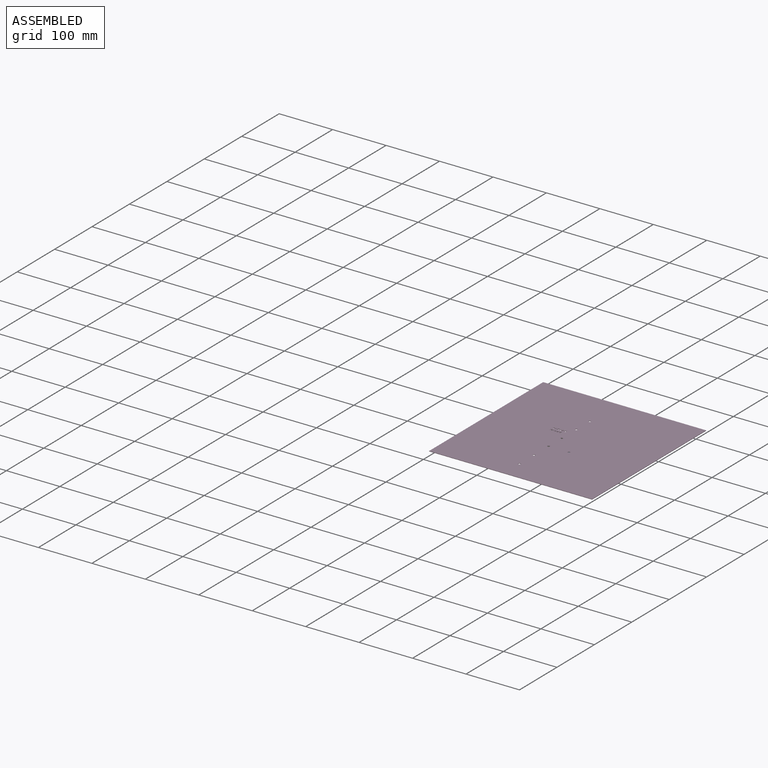
[diagram: assembled view]
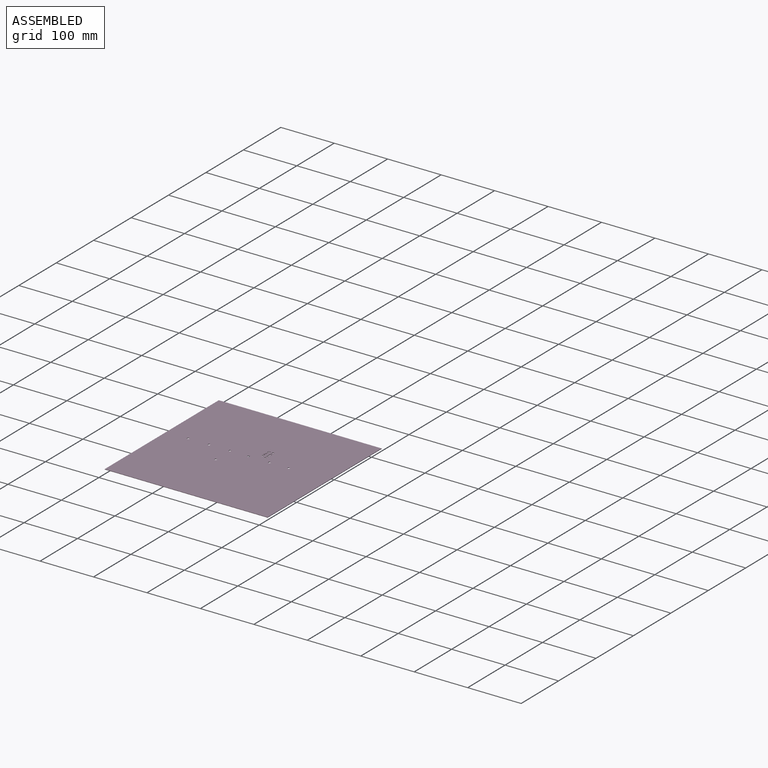
[diagram: assembled view, second angle]
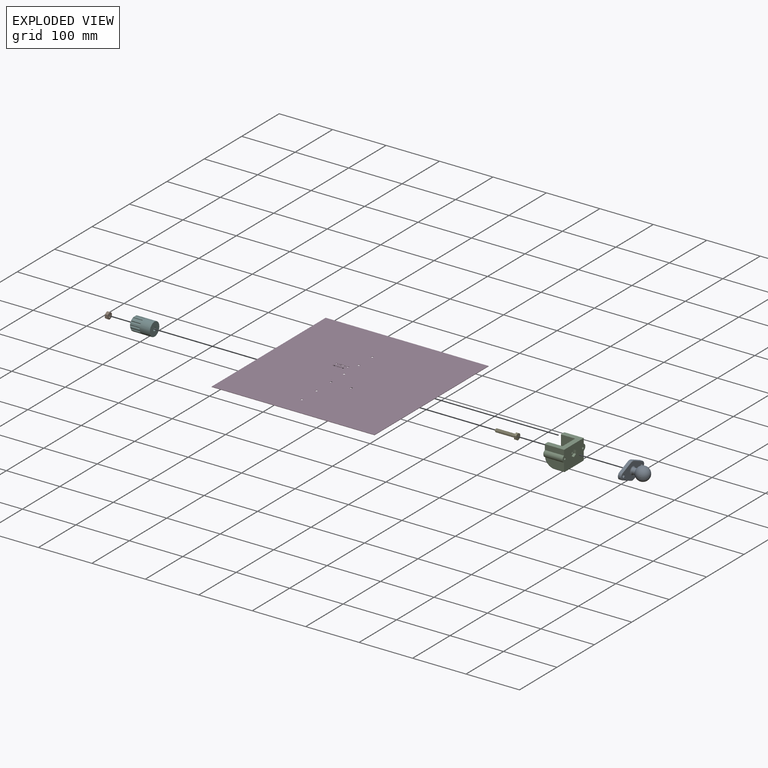
[diagram: exploded view]
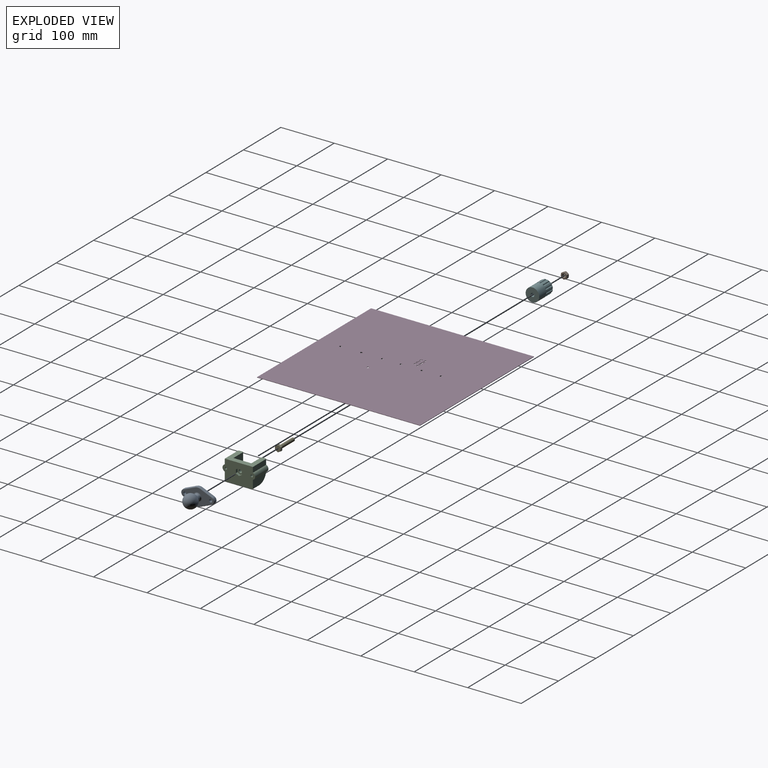
[diagram: exploded view, second angle]
ASSEMBLY  parts=6 mates=14
PART A: 23 faces, bbox 63.1x35.1x37.9 mm
  f0: cylinder r=6.86mm len=12.64mm, axis (0,0,1), area 85.7mm2, adj f1,f4,f6,f9
  f1: plane 21.87x9.2mm, normal (-0.39,-0.92,0), area 126.4mm2, adj f0,f2,f4,f7
  f2: cylinder r=12.7mm len=9.85mm, axis (0,0,1), area 53.9mm2, adj f1,f4,f8,f14
  f3: cylinder r=2.73mm len=6.12mm, axis (0,0,1), area 105mm2, adj f4,f5
  f4: plane 61.98x33.02mm, normal (0,0,-1), area 1303.6mm2, adj f0,f1,f2,f3,f9,f10,f13,f14
  f5: plane 60.39x31.43mm, normal (0,0,1), area 995.5mm2, adj f3,f6,f7,f8,f11,f12,f15,f16
  f6: torus R=6.06mm, axis (0,0,1), area 19.2mm2, adj f0,f5,f7,f11
  f7: cylinder r=0.79mm len=22.17mm, axis (0.92,-0.39,0), area 29.6mm2, adj f1,f5,f6,f8
  f8: torus R=11.91mm, axis (0,0,1), area 12.3mm2, adj f2,f5,f7,f17
  f9: plane 21.87x9.2mm, normal (-0.39,0.92,0), area 126.4mm2, adj f0,f4,f10,f11
  f10: cylinder r=12.7mm len=9.85mm, axis (0,0,1), area 53.9mm2, adj f4,f9,f12,f18
  f11: cylinder r=0.79mm len=22.17mm, axis (0.92,0.39,0), area 29.6mm2, adj f5,f6,f9,f12
  f12: torus R=11.91mm, axis (0,0,1), area 12.3mm2, adj f5,f10,f11,f19
  f13: cylinder r=6.86mm len=12.64mm, axis (0,0,1), area 85.7mm2, adj f4,f14,f16,f18
  f14: plane 21.87x9.2mm, normal (0.39,-0.92,0), area 126.4mm2, adj f2,f4,f13,f17
  f15: cylinder r=2.73mm len=6.12mm, axis (0,0,1), area 105mm2, adj f4,f5
  f16: torus R=6.06mm, axis (0,0,1), area 19.2mm2, adj f5,f13,f17,f19
  f17: cylinder r=0.79mm len=22.17mm, axis (-0.92,-0.39,0), area 29.6mm2, adj f5,f8,f14,f16
  f18: plane 21.87x9.2mm, normal (0.39,0.92,0), area 126.4mm2, adj f4,f10,f13,f19
  f19: cylinder r=0.79mm len=22.17mm, axis (-0.92,0.39,0), area 29.6mm2, adj f5,f12,f16,f18
  f20: sphere r=12.7mm, area 1928.4mm2, adj f21
  f21: cylinder r=5.46mm len=10.92mm, axis (0,0,-1), area 178.5mm2, adj f20,f22
  f22: torus R=7.84mm, axis (0,0,-1), area 148.7mm2, adj f5,f21
PART B: 26 faces, bbox 13.4x13.4x7 mm
  f0: cone r=2.86mm half-angle=45deg, axis (0,0,-1), area 10.5mm2, adj f10,f11,f12,f13
  f1: cone r=2.86mm half-angle=45deg, axis (0,0,1), area 10.5mm2, adj f3,f11,f12,f13
  f2: cylinder r=3.17mm len=6.35mm, axis (0,0,-1), area 13.9mm2, adj f3,f10,f11,f13
  f3: plane 11.11x11.11mm, normal (0,0,1), area 65.3mm2, adj f1,f2,f14,f15,f16,f17,f18,f19
  f4: plane 6.08x6.08mm, normal (-0.5,0.87,0), area 33.5mm2, adj f5,f9,f14,f19,f21,f22
  f5: plane 6.95x6.09mm, normal (-1,0,0), area 33.5mm2, adj f4,f6,f18,f19,f22,f23
  f6: plane 6.08x6.08mm, normal (-0.5,-0.87,0), area 33.5mm2, adj f5,f7,f17,f18,f23,f24
  f7: plane 6.08x6.08mm, normal (0.5,-0.87,0), area 33.5mm2, adj f6,f8,f16,f17,f24,f25
  f8: plane 6.95x6.09mm, normal (1,0,0), area 33.5mm2, adj f7,f9,f15,f16,f20,f25
  f9: plane 6.08x6.08mm, normal (0.5,0.87,0), area 33.5mm2, adj f4,f8,f14,f15,f20,f21
  f10: plane 11.11x11.11mm, normal (0,0,-1), area 65.3mm2, adj f0,f2,f20,f21,f22,f23,f24,f25
  f11: bspline ~6.35x6.35mm, area 59.4mm2, adj f0,f1,f2,f12
  f12: cylinder r=2.35mm len=4.7mm, axis (0,0,1), area 7.2mm2, adj f0,f1,f11,f13
  f13: bspline ~6.35x6.35mm, area 62.2mm2, adj f0,f1,f2,f12
  f14: cone r=5.56mm half-angle=60deg, axis (0,0,-1), area 3mm2, adj f3,f4,f9
  f15: cone r=5.56mm half-angle=60deg, axis (0,0,-1), area 3mm2, adj f3,f8,f9
  f16: cone r=5.56mm half-angle=60deg, axis (0,0,-1), area 3mm2, adj f3,f7,f8
  f17: cone r=5.56mm half-angle=60deg, axis (0,0,-1), area 3mm2, adj f3,f6,f7
  f18: cone r=5.56mm half-angle=60deg, axis (0,0,-1), area 3mm2, adj f3,f5,f6
  f19: cone r=5.56mm half-angle=60deg, axis (0,0,-1), area 3mm2, adj f3,f4,f5
  f20: cone r=5.56mm half-angle=60deg, axis (0,0,1), area 3mm2, adj f8,f9,f10
  f21: cone r=5.56mm half-angle=60deg, axis (0,0,1), area 3mm2, adj f4,f9,f10
  f22: cone r=5.56mm half-angle=60deg, axis (0,0,1), area 3mm2, adj f4,f5,f10
  f23: cone r=5.56mm half-angle=60deg, axis (0,0,1), area 3mm2, adj f5,f6,f10
  f24: cone r=5.56mm half-angle=60deg, axis (0,0,1), area 3mm2, adj f6,f7,f10
  f25: cone r=5.56mm half-angle=60deg, axis (0,0,1), area 3mm2, adj f7,f8,f10
PART C: 46 faces, bbox 38.2x62x39.7 mm
  f0: plane 60.96x38.1mm, normal (1,0,0), area 1939.8mm2, adj f2,f6,f7,f8,f11,f12,f22,f24
  f1: cylinder r=3.24mm len=9.48mm, axis (1,0,0), area 192.8mm2, adj f10,f27
  f2: plane 35.01x9.85mm, normal (0,-1,0), area 344.7mm2, adj f0,f8,f12,f18
  f3: plane 36.51x33.56mm, normal (-1,0,0), area 936.5mm2, adj f4,f8,f9,f15,f29
  f4: plane 36.51x25.48mm, normal (0,1,0), area 864.9mm2, adj f3,f8,f14,f16,f17
  f5: plane 19.05x10.53mm, normal (-1,0,0), area 133.7mm2, adj f8,f11,f13,f14,f18,f19
  f6: plane 34.79x14.74mm, normal (0,-1,0), area 450.6mm2, adj f0,f12,f21,f22
  f7: plane 49.43x17.54mm, normal (0,0,-1), area 514.4mm2, adj f0,f13,f15,f17,f22,f34,f37,f42
  f8: plane 52.61x36.59mm, normal (0,0,1), area 1014.6mm2, adj f0,f2,f3,f4,f5,f14,f18,f28
  f9: cylinder r=9.59mm len=19.18mm, axis (1,0,0), area 212.3mm2, adj f3,f23
  f10: plane 17.59x17.59mm, normal (-1,0,0), area 210mm2, adj f1,f23
  f11: cylinder r=2.15mm len=36.59mm, axis (1,0,0), area 494.9mm2, adj f0,f5
  f12: cylinder r=6.35mm len=35.01mm, axis (1,0,0), area 542.9mm2, adj f0,f2,f6,f19,f20,f21
  f13: cylinder r=19.05mm len=19.05mm, axis (0,1,0), area 192.4mm2, adj f5,f7,f16,f20,f21
  f14: cylinder r=1.59mm len=19.05mm, axis (0,0,1), area 47.5mm2, adj f4,f5,f8,f16
  f15: cylinder r=1.59mm len=36.73mm, axis (0,1,0), area 87.6mm2, adj f3,f7,f17,f37
  f16: torus R=17.46mm, axis (0,1,0), area 72.4mm2, adj f4,f13,f14,f17
  f17: cylinder r=1.59mm len=9.61mm, axis (1,0,0), area 22mm2, adj f4,f7,f15,f16
  f18: cylinder r=1.59mm len=11.09mm, axis (0,0,1), area 26.1mm2, adj f2,f5,f8,f19
  f19: torus R=4.76mm, axis (-1,0,0), area 29.9mm2, adj f5,f12,f18,f20
  f20: bspline ~5.89x3.88mm, area 8.2mm2, adj f12,f13,f19,f21
  f21: torus R=17.46mm, axis (0,-1,0), area 66.4mm2, adj f6,f12,f13,f20,f22
  f22: cylinder r=1.59mm len=17.54mm, axis (-1,0,0), area 43.7mm2, adj f0,f6,f7,f21
  f23: cone r=8.79mm half-angle=45deg, axis (1,0,0), area 64.8mm2, adj f9,f10
  f24: plane 5.56x4.37mm, normal (0,0.5,0.87), area 28mm2, adj f0,f26,f27,f43
  f25: plane 5.56x4.37mm, normal (0,0.5,-0.87), area 28mm2, adj f0,f26,f27,f44
  f26: plane 6.42x4.37mm, normal (0,1,0), area 28mm2, adj f0,f24,f25,f27
  f27: plane 12.83x11.11mm, normal (1,0,0), area 74mm2, adj f1,f24,f25,f26,f43,f44,f45
  f28: plane 35.01x9.85mm, normal (0,1,0), area 344.7mm2, adj f0,f8,f33,f38
  f29: plane 36.51x25.48mm, normal (0,-1,0), area 864.9mm2, adj f3,f8,f35,f36,f37
  f30: plane 19.05x10.53mm, normal (-1,0,0), area 133.7mm2, adj f8,f32,f34,f35,f38,f39
  f31: plane 34.79x14.74mm, normal (0,1,0), area 450.6mm2, adj f0,f33,f41,f42
  f32: cylinder r=2.15mm len=36.59mm, axis (1,0,0), area 494.9mm2, adj f0,f30
  f33: cylinder r=6.35mm len=35.01mm, axis (1,0,0), area 542.9mm2, adj f0,f28,f31,f39,f40,f41
  f34: cylinder r=19.05mm len=19.05mm, axis (0,-1,0), area 192.4mm2, adj f7,f30,f36,f40,f41
  f35: cylinder r=1.59mm len=19.05mm, axis (0,0,1), area 47.5mm2, adj f8,f29,f30,f36
  f36: torus R=17.46mm, axis (0,-1,0), area 72.4mm2, adj f29,f34,f35,f37
  f37: cylinder r=1.59mm len=9.61mm, axis (1,0,0), area 22mm2, adj f7,f15,f29,f36
  f38: cylinder r=1.59mm len=11.09mm, axis (0,0,1), area 26.1mm2, adj f8,f28,f30,f39
  f39: torus R=4.76mm, axis (-1,0,0), area 29.9mm2, adj f30,f33,f38,f40
  f40: bspline ~5.89x3.88mm, area 8.2mm2, adj f33,f34,f39,f41
  f41: torus R=17.46mm, axis (0,1,0), area 66.4mm2, adj f31,f33,f34,f40,f42
  f42: cylinder r=1.59mm len=17.54mm, axis (-1,0,0), area 43.7mm2, adj f0,f7,f31,f41
  f43: plane 5.56x4.37mm, normal (0,-0.5,0.87), area 28mm2, adj f0,f24,f27,f45
  f44: plane 5.56x4.37mm, normal (0,-0.5,-0.87), area 28mm2, adj f0,f25,f27,f45
  f45: plane 6.42x4.37mm, normal (0,-1,0), area 28mm2, adj f0,f27,f43,f44
PART D: 244 faces, bbox 304.8x304.8x34.6 mm
  f0: plane 17.4x4.37mm, normal (0,-1,0), area 76mm2, adj f1,f4,f5,f6
  f1: cylinder r=16.38mm len=32.77mm, axis (-1,0,0), area 224.9mm2, adj f0,f3,f4,f5
  f2: cylinder r=9.72mm len=19.43mm, axis (-1,0,0), area 266.7mm2, adj f4,f5
  f3: plane 17.4x4.37mm, normal (0,1,0), area 76mm2, adj f1,f4,f5,f6
  f4: plane 33.78x32.77mm, normal (1,0,0), area 695.2mm2, adj f0,f1,f2,f3,f6
  f5: plane 33.78x32.77mm, normal (-1,0,0), area 695.2mm2, adj f0,f1,f2,f3,f6
  f6: plane 304.8x304.8mm, normal (0,0,-1), area 92598.1mm2, adj f0,f3,f4,f5,f7,f8,f9,f10
  f7: extruded ~1.15x0.79mm, area 1mm2, adj f6,f8,f235,f236
  f8: extruded ~1.16x0.79mm, area 1mm2, adj f6,f7,f9,f236
  f9: extruded ~1.04x0.79mm, area 0.9mm2, adj f6,f8,f10,f236
  f10: extruded ~0.79x0.73mm, area 0.6mm2, adj f6,f9,f11,f236
  f11: extruded ~0.79x0.55mm, area 0.6mm2, adj f6,f10,f12,f236
  f12: extruded ~0.84x0.79mm, area 0.7mm2, adj f6,f11,f13,f236
  f13: extruded ~1.16x0.79mm, area 1mm2, adj f6,f12,f14,f236
  f14: extruded ~1.04x0.79mm, area 0.9mm2, adj f6,f13,f235,f236
  f15: extruded ~1.15x0.79mm, area 1mm2, adj f6,f16,f220,f236
  f16: extruded ~1.16x0.79mm, area 1mm2, adj f6,f15,f17,f236
  f17: extruded ~1.04x0.79mm, area 0.9mm2, adj f6,f16,f18,f236
  f18: extruded ~0.79x0.73mm, area 0.6mm2, adj f6,f17,f19,f236
  f19: extruded ~0.79x0.55mm, area 0.6mm2, adj f6,f18,f20,f236
  f20: extruded ~0.84x0.79mm, area 0.7mm2, adj f6,f19,f21,f236
  f21: extruded ~1.16x0.79mm, area 1mm2, adj f6,f20,f22,f236
  f22: extruded ~1.04x0.79mm, area 0.9mm2, adj f6,f21,f220,f236
  f23: extruded ~0.79x0.53mm, area 0.4mm2, adj f6,f24,f221,f236
  f24: extruded ~0.79x0.36mm, area 0.3mm2, adj f6,f23,f25,f236
  f25: plane 0.79x0.43mm, normal (-0.99,0.15,0), area 0.3mm2, adj f6,f24,f26,f236
  f26: extruded ~0.79x0.33mm, area 0.3mm2, adj f6,f25,f27,f236
  f27: extruded ~0.79x0.63mm, area 0.6mm2, adj f6,f26,f28,f236
  f28: extruded ~0.79x0.75mm, area 0.6mm2, adj f6,f27,f29,f236
  f29: plane 1.64x0.79mm, normal (-1,0,0), area 1.3mm2, adj f6,f28,f30,f236
  f30: plane 0.79x0.46mm, normal (0,1,0), area 0.4mm2, adj f6,f29,f31,f236
  f31: plane 3.05x0.79mm, normal (1,0,0), area 2.4mm2, adj f6,f30,f32,f236
  f32: plane 0.79x0.38mm, normal (0,-1,0), area 0.3mm2, adj f6,f31,f33,f236
  f33: plane 0.79x0.56mm, normal (-1,-0.09,0), area 0.4mm2, adj f6,f32,f34,f236
  f34: plane 0.79x0.02mm, normal (0,-1,0), area 0mm2, adj f6,f33,f221,f236
  f35: plane 0.79x0.41mm, normal (0.99,0.15,0), area 0.3mm2, adj f6,f36,f222,f236
  f36: plane 0.79x0.03mm, normal (0,1,0), area 0mm2, adj f6,f35,f37,f236
  f37: extruded ~0.96x0.79mm, area 0.9mm2, adj f6,f36,f38,f236
  f38: extruded ~0.93x0.79mm, area 0.8mm2, adj f6,f37,f39,f236
  f39: extruded ~1.16x0.79mm, area 1mm2, adj f6,f38,f40,f236
  f40: extruded ~1.17x0.79mm, area 1mm2, adj f6,f39,f41,f236
  f41: extruded ~0.93x0.79mm, area 0.8mm2, adj f6,f40,f42,f236
  f42: extruded ~0.95x0.79mm, area 0.9mm2, adj f6,f41,f43,f236
  f43: plane 0.79x0.04mm, normal (0,-1,0), area 0mm2, adj f6,f42,f44,f236
  f44: plane 0.79x0.22mm, normal (1,0.09,0), area 0.2mm2, adj f6,f43,f45,f236
  f45: plane 0.79x0.21mm, normal (1,0.05,0), area 0.2mm2, adj f6,f44,f46,f236
  f46: plane 1.24x0.79mm, normal (1,0,0), area 1mm2, adj f6,f45,f47,f236
  f47: plane 0.79x0.46mm, normal (0,-1,0), area 0.4mm2, adj f6,f46,f48,f236
  f48: plane 4.33x0.79mm, normal (-1,0,0), area 3.4mm2, adj f6,f47,f222,f236
  f49: extruded ~0.79x0.53mm, area 0.4mm2, adj f6,f50,f223,f236
  f50: extruded ~0.79x0.36mm, area 0.3mm2, adj f6,f49,f51,f236
  f51: plane 0.79x0.43mm, normal (-0.99,0.15,0), area 0.3mm2, adj f6,f50,f52,f236
  f52: extruded ~0.79x0.33mm, area 0.3mm2, adj f6,f51,f53,f236
  f53: extruded ~0.79x0.63mm, area 0.6mm2, adj f6,f52,f54,f236
  f54: extruded ~0.79x0.75mm, area 0.6mm2, adj f6,f53,f55,f236
  f55: plane 1.64x0.79mm, normal (-1,0,0), area 1.3mm2, adj f6,f54,f56,f236
  f56: plane 0.79x0.46mm, normal (0,1,0), area 0.4mm2, adj f6,f55,f57,f236
  f57: plane 3.05x0.79mm, normal (1,0,0), area 2.4mm2, adj f6,f56,f58,f236
  f58: plane 0.79x0.38mm, normal (0,-1,0), area 0.3mm2, adj f6,f57,f59,f236
  f59: plane 0.79x0.56mm, normal (-1,-0.09,0), area 0.4mm2, adj f6,f58,f60,f236
  f60: plane 0.79x0.02mm, normal (0,-1,0), area 0mm2, adj f6,f59,f223,f236
  f61: plane 0.79x0.55mm, normal (0,1,0), area 0.4mm2, adj f6,f62,f224,f236
  f62: plane 1.79x0.79mm, normal (0.95,0.3,0), area 1.5mm2, adj f6,f61,f63,f236
  f63: extruded ~0.79x0.75mm, area 0.6mm2, adj f6,f62,f64,f236
  f64: plane 0.79x0.02mm, normal (0,1,0), area 0mm2, adj f6,f63,f65,f236
  f65: extruded ~0.79x0.75mm, area 0.6mm2, adj f6,f64,f66,f236
  f66: plane 1.78x0.79mm, normal (-0.95,0.31,0), area 1.5mm2, adj f6,f65,f67,f236
  f67: plane 0.79x0.53mm, normal (0,1,0), area 0.4mm2, adj f6,f66,f68,f236
  f68: plane 3.05x0.83mm, normal (0.96,0.26,0), area 2.5mm2, adj f6,f67,f69,f236
  f69: plane 0.79x0.48mm, normal (0,-1,0), area 0.4mm2, adj f6,f68,f70,f236
  f70: extruded ~1.75x0.79mm, area 1.4mm2, adj f6,f69,f71,f236
  f71: extruded ~0.81x0.79mm, area 0.7mm2, adj f6,f70,f72,f236
  f72: plane 0.79x0.02mm, normal (0,-1,0), area 0mm2, adj f6,f71,f73,f236
  f73: extruded ~0.79x0.41mm, area 0.3mm2, adj f6,f72,f74,f236
  f74: extruded ~0.79x0.4mm, area 0.3mm2, adj f6,f73,f75,f236
  f75: plane 1.75x0.79mm, normal (0.95,-0.3,0), area 1.5mm2, adj f6,f74,f76,f236
  f76: plane 0.79x0.5mm, normal (0,-1,0), area 0.4mm2, adj f6,f75,f77,f236
  f77: plane 1.75x0.79mm, normal (-0.95,-0.3,0), area 1.5mm2, adj f6,f76,f78,f236
  f78: extruded ~0.8x0.79mm, area 0.7mm2, adj f6,f77,f79,f236
  f79: plane 0.79x0.02mm, normal (0,-1,0), area 0mm2, adj f6,f78,f80,f236
  f80: extruded ~0.79x0.31mm, area 0.3mm2, adj f6,f79,f81,f236
  f81: extruded ~2.24x0.79mm, area 1.8mm2, adj f6,f80,f82,f236
  f82: plane 0.79x0.48mm, normal (0,-1,0), area 0.4mm2, adj f6,f81,f224,f236
  f83: plane 0.79x0.34mm, normal (0,1,0), area 0.3mm2, adj f6,f84,f225,f236
  f84: plane 0.79x0.43mm, normal (0.98,0.21,0), area 0.4mm2, adj f6,f83,f85,f236
  f85: plane 0.79x0.02mm, normal (0,1,0), area 0mm2, adj f6,f84,f86,f236
  f86: extruded ~0.79x0.45mm, area 0.5mm2, adj f6,f85,f87,f236
  f87: extruded ~0.79x0.57mm, area 0.5mm2, adj f6,f86,f88,f236
  f88: extruded ~0.79x0.71mm, area 0.6mm2, adj f6,f87,f89,f236
  f89: extruded ~0.79x0.66mm, area 0.6mm2, adj f6,f88,f90,f236
  f90: extruded ~1.48x0.97mm, area 1.6mm2, adj f6,f89,f91,f236
  f91: plane 0.79x0.52mm, normal (0.03,-1,0), area 0.4mm2, adj f6,f90,f92,f236
  f92: plane 0.79x0.19mm, normal (1,0,0), area 0.2mm2, adj f6,f91,f93,f236
  f93: extruded ~0.79x0.53mm, area 0.4mm2, adj f6,f92,f94,f236
  f94: extruded ~0.79x0.49mm, area 0.4mm2, adj f6,f93,f95,f236
  f95: extruded ~0.86x0.79mm, area 0.7mm2, adj f6,f94,f96,f236
  f96: plane 0.79x0.35mm, normal (0.93,0.37,0), area 0.3mm2, adj f6,f95,f97,f236
  f97: extruded ~0.79x0.49mm, area 0.4mm2, adj f6,f96,f98,f236
  f98: extruded ~0.79x0.54mm, area 0.4mm2, adj f6,f97,f99,f236
  f99: extruded ~0.81x0.79mm, area 0.7mm2, adj f6,f98,f100,f236
  f100: extruded ~0.79x0.78mm, area 0.7mm2, adj f6,f99,f225,f236
  f101: plane 304.8x0.79mm, normal (1,0,0), area 241.9mm2, adj f6,f102,f226,f236
  f102: plane 304.8x0.79mm, normal (0,1,0), area 241.9mm2, adj f6,f101,f103,f236
  f103: plane 304.8x0.79mm, normal (-1,0,0), area 241.9mm2, adj f6,f102,f226,f236
  f104: plane 0.79x0.41mm, normal (0.99,0.15,0), area 0.3mm2, adj f6,f105,f227,f236
  f105: plane 0.79x0.03mm, normal (0,1,0), area 0mm2, adj f6,f104,f106,f236
  f106: extruded ~0.96x0.79mm, area 0.9mm2, adj f6,f105,f107,f236
  f107: extruded ~0.93x0.79mm, area 0.8mm2, adj f6,f106,f108,f236
  f108: extruded ~1.16x0.79mm, area 1mm2, adj f6,f107,f109,f236
  f109: extruded ~1.17x0.79mm, area 1mm2, adj f6,f108,f110,f236
  f110: extruded ~0.93x0.79mm, area 0.8mm2, adj f6,f109,f111,f236
  f111: extruded ~0.95x0.79mm, area 0.9mm2, adj f6,f110,f112,f236
  f112: plane 0.79x0.04mm, normal (0,-1,0), area 0mm2, adj f6,f111,f113,f236
  f113: plane 0.79x0.22mm, normal (1,0.09,0), area 0.2mm2, adj f6,f112,f114,f236
  f114: plane 0.79x0.21mm, normal (1,0.05,0), area 0.2mm2, adj f6,f113,f115,f236
  f115: plane 1.24x0.79mm, normal (1,0,0), area 1mm2, adj f6,f114,f116,f236
  f116: plane 0.79x0.46mm, normal (0,-1,0), area 0.4mm2, adj f6,f115,f117,f236
  f117: plane 4.33x0.79mm, normal (-1,0,0), area 3.4mm2, adj f6,f116,f227,f236
  f118: extruded ~0.79x0.53mm, area 0.4mm2, adj f6,f119,f228,f236
  f119: extruded ~0.79x0.36mm, area 0.3mm2, adj f6,f118,f120,f236
  f120: plane 0.79x0.43mm, normal (-0.99,0.15,0), area 0.3mm2, adj f6,f119,f121,f236
  f121: extruded ~0.79x0.33mm, area 0.3mm2, adj f6,f120,f122,f236
  f122: extruded ~0.79x0.63mm, area 0.6mm2, adj f6,f121,f123,f236
  f123: extruded ~0.79x0.75mm, area 0.6mm2, adj f6,f122,f124,f236
  f124: plane 1.64x0.79mm, normal (-1,0,0), area 1.3mm2, adj f6,f123,f125,f236
  f125: plane 0.79x0.46mm, normal (0,1,0), area 0.4mm2, adj f6,f124,f126,f236
  f126: plane 3.05x0.79mm, normal (1,0,0), area 2.4mm2, adj f6,f125,f127,f236
  f127: plane 0.79x0.38mm, normal (0,-1,0), area 0.3mm2, adj f6,f126,f128,f236
  f128: plane 0.79x0.56mm, normal (-1,-0.09,0), area 0.4mm2, adj f6,f127,f129,f236
  f129: plane 0.79x0.02mm, normal (0,-1,0), area 0mm2, adj f6,f128,f228,f236
  f130: extruded ~1.15x0.79mm, area 1mm2, adj f6,f131,f229,f236
  f131: extruded ~1.16x0.79mm, area 1mm2, adj f6,f130,f132,f236
  f132: extruded ~1.04x0.79mm, area 0.9mm2, adj f6,f131,f133,f236
  f133: extruded ~0.79x0.73mm, area 0.6mm2, adj f6,f132,f134,f236
  f134: extruded ~0.79x0.55mm, area 0.6mm2, adj f6,f133,f135,f236
  f135: extruded ~0.84x0.79mm, area 0.7mm2, adj f6,f134,f136,f236
  f136: extruded ~1.16x0.79mm, area 1mm2, adj f6,f135,f137,f236
  f137: extruded ~1.04x0.79mm, area 0.9mm2, adj f6,f136,f229,f236
  f138: plane 0.79x0.36mm, normal (-1,0,0), area 0.3mm2, adj f6,f139,f230,f236
  f139: plane 0.79x0.78mm, normal (0,1,0), area 0.6mm2, adj f6,f138,f140,f236
  f140: plane 2.69x0.79mm, normal (-1,0,0), area 2.1mm2, adj f6,f139,f141,f236
  f141: plane 0.79x0.46mm, normal (0,1,0), area 0.4mm2, adj f6,f140,f142,f236
  f142: plane 2.69x0.79mm, normal (1,0,0), area 2.1mm2, adj f6,f141,f143,f236
  f143: plane 0.79x0.54mm, normal (0,1,0), area 0.4mm2, adj f6,f142,f144,f236
  f144: plane 0.79x0.21mm, normal (1,0,0), area 0.2mm2, adj f6,f143,f145,f236
  f145: plane 0.79x0.54mm, normal (0.29,-0.96,0), area 0.5mm2, adj f6,f144,f146,f236
  f146: plane 0.79x0.17mm, normal (1,0,0), area 0.1mm2, adj f6,f145,f147,f236
  f147: extruded ~1.12x0.98mm, area 1.4mm2, adj f6,f146,f148,f236
  f148: extruded ~0.79x0.57mm, area 0.5mm2, adj f6,f147,f149,f236
  f149: plane 0.79x0.37mm, normal (-0.95,0.31,0), area 0.3mm2, adj f6,f148,f150,f236
  f150: extruded ~0.79x0.46mm, area 0.4mm2, adj f6,f149,f151,f236
  f151: extruded ~0.79x0.39mm, area 0.4mm2, adj f6,f150,f152,f236
  f152: extruded ~0.79x0.56mm, area 0.5mm2, adj f6,f151,f153,f236
  f153: plane 0.79x0.2mm, normal (-1,0,0), area 0.2mm2, adj f6,f152,f230,f236
  f154: plane 0.79x0.34mm, normal (0,1,0), area 0.3mm2, adj f6,f155,f231,f236
  f155: plane 0.79x0.43mm, normal (0.98,0.21,0), area 0.4mm2, adj f6,f154,f156,f236
  f156: plane 0.79x0.02mm, normal (0,1,0), area 0mm2, adj f6,f155,f157,f236
  f157: extruded ~0.79x0.45mm, area 0.5mm2, adj f6,f156,f158,f236
  f158: extruded ~0.79x0.57mm, area 0.5mm2, adj f6,f157,f159,f236
  f159: extruded ~0.79x0.71mm, area 0.6mm2, adj f6,f158,f160,f236
  f160: extruded ~0.79x0.66mm, area 0.6mm2, adj f6,f159,f161,f236
  f161: extruded ~1.48x0.97mm, area 1.6mm2, adj f6,f160,f162,f236
  f162: plane 0.79x0.52mm, normal (0.03,-1,0), area 0.4mm2, adj f6,f161,f163,f236
  f163: plane 0.79x0.19mm, normal (1,0,0), area 0.2mm2, adj f6,f162,f164,f236
  f164: extruded ~0.79x0.53mm, area 0.4mm2, adj f6,f163,f165,f236
  f165: extruded ~0.79x0.49mm, area 0.4mm2, adj f6,f164,f166,f236
  f166: extruded ~0.86x0.79mm, area 0.7mm2, adj f6,f165,f167,f236
  f167: plane 0.79x0.35mm, normal (0.93,0.37,0), area 0.3mm2, adj f6,f166,f168,f236
  f168: extruded ~0.79x0.49mm, area 0.4mm2, adj f6,f167,f169,f236
  f169: extruded ~0.79x0.54mm, area 0.4mm2, adj f6,f168,f170,f236
  f170: extruded ~0.81x0.79mm, area 0.7mm2, adj f6,f169,f171,f236
  f171: extruded ~0.79x0.78mm, area 0.7mm2, adj f6,f170,f231,f236
  f172: extruded ~0.96x0.79mm, area 0.9mm2, adj f6,f173,f232,f236
  f173: extruded ~0.93x0.79mm, area 0.8mm2, adj f6,f172,f174,f236
  f174: extruded ~1.16x0.79mm, area 1mm2, adj f6,f173,f175,f236
  f175: extruded ~1.17x0.79mm, area 1mm2, adj f6,f174,f176,f236
  f176: extruded ~0.93x0.79mm, area 0.8mm2, adj f6,f175,f177,f236
  f177: extruded ~0.79x0.54mm, area 0.4mm2, adj f6,f176,f178,f236
  f178: extruded ~0.79x0.41mm, area 0.4mm2, adj f6,f177,f179,f236
  f179: plane 0.79x0.03mm, normal (0,1,0), area 0mm2, adj f6,f178,f180,f236
  f180: plane 0.79x0.39mm, normal (-0.97,0.24,0), area 0.3mm2, adj f6,f179,f181,f236
  f181: plane 0.79x0.33mm, normal (0,1,0), area 0.3mm2, adj f6,f180,f182,f236
  f182: plane 4.33x0.79mm, normal (1,0,0), area 3.4mm2, adj f6,f181,f183,f236
  f183: plane 0.79x0.46mm, normal (0,-1,0), area 0.4mm2, adj f6,f182,f184,f236
  f184: plane 1.05x0.79mm, normal (-1,0,0), area 0.8mm2, adj f6,f183,f185,f236
  f185: extruded ~0.79x0.63mm, area 0.5mm2, adj f6,f184,f232,f236
  f186: extruded ~0.79x0.36mm, area 0.3mm2, adj f6,f187,f233,f236
  f187: extruded ~0.79x0.24mm, area 0.2mm2, adj f6,f186,f188,f236
  f188: extruded ~0.79x0.18mm, area 0.1mm2, adj f6,f187,f189,f236
  f189: plane 0.79x0.35mm, normal (-1,0,0), area 0.3mm2, adj f6,f188,f190,f236
  f190: extruded ~0.79x0.22mm, area 0.2mm2, adj f6,f189,f191,f236
  f191: extruded ~0.79x0.26mm, area 0.2mm2, adj f6,f190,f192,f236
  f192: extruded ~0.93x0.88mm, area 1.2mm2, adj f6,f191,f193,f236
  f193: plane 1.81x0.79mm, normal (1,0,0), area 1.4mm2, adj f6,f192,f194,f236
  f194: plane 0.79x0.44mm, normal (0,1,0), area 0.3mm2, adj f6,f193,f195,f236
  f195: plane 0.79x0.22mm, normal (1,0,0), area 0.2mm2, adj f6,f194,f196,f236
  f196: plane 0.79x0.44mm, normal (0.4,-0.92,0), area 0.4mm2, adj f6,f195,f197,f236
  f197: plane 0.79x0.65mm, normal (0.96,-0.29,0), area 0.5mm2, adj f6,f196,f198,f236
  f198: plane 0.79x0.27mm, normal (0,-1,0), area 0.2mm2, adj f6,f197,f199,f236
  f199: plane 0.79x0.71mm, normal (-1,0,0), area 0.6mm2, adj f6,f198,f200,f236
  f200: plane 0.88x0.79mm, normal (0,-1,0), area 0.7mm2, adj f6,f199,f201,f236
  f201: plane 0.79x0.36mm, normal (-1,0,0), area 0.3mm2, adj f6,f200,f202,f236
  f202: plane 0.88x0.79mm, normal (0,1,0), area 0.7mm2, adj f6,f201,f203,f236
  f203: plane 1.79x0.79mm, normal (-1,0,0), area 1.4mm2, adj f6,f202,f233,f236
  f204: plane 0.79x0.47mm, normal (0,-1,0), area 0.4mm2, adj f6,f205,f234,f236
  f205: plane 1.98x0.79mm, normal (-1,0,0), area 1.6mm2, adj f6,f204,f206,f236
  f206: extruded ~0.79x0.56mm, area 0.5mm2, adj f6,f205,f207,f236
  f207: extruded ~0.79x0.53mm, area 0.5mm2, adj f6,f206,f208,f236
  f208: extruded ~0.79x0.7mm, area 0.6mm2, adj f6,f207,f209,f236
  f209: extruded ~0.85x0.79mm, area 0.7mm2, adj f6,f208,f210,f236
  f210: plane 1.6x0.79mm, normal (1,0,0), area 1.3mm2, adj f6,f209,f211,f236
  f211: plane 0.79x0.46mm, normal (0,-1,0), area 0.4mm2, adj f6,f210,f212,f236
  f212: plane 3.05x0.79mm, normal (-1,0,0), area 2.4mm2, adj f6,f211,f213,f236
  f213: plane 0.79x0.38mm, normal (0,1,0), area 0.3mm2, adj f6,f212,f214,f236
  f214: plane 0.79x0.41mm, normal (0.99,0.16,0), area 0.3mm2, adj f6,f213,f215,f236
  f215: plane 0.79x0.03mm, normal (0,1,0), area 0mm2, adj f6,f214,f216,f236
  f216: extruded ~0.79x0.39mm, area 0.4mm2, adj f6,f215,f217,f236
  f217: extruded ~0.79x0.58mm, area 0.5mm2, adj f6,f216,f218,f236
  f218: extruded ~0.83x0.79mm, area 0.7mm2, adj f6,f217,f219,f236
  f219: extruded ~0.85x0.79mm, area 0.7mm2, adj f6,f218,f234,f236
  f220: extruded ~1.02x0.79mm, area 0.9mm2, adj f6,f15,f22,f236
  f221: extruded ~0.79x0.46mm, area 0.5mm2, adj f6,f23,f34,f236
  f222: plane 0.79x0.38mm, normal (0,1,0), area 0.3mm2, adj f6,f35,f48,f236
  f223: extruded ~0.79x0.46mm, area 0.5mm2, adj f6,f49,f60,f236
  f224: plane 3.05x0.84mm, normal (-0.96,0.27,0), area 2.5mm2, adj f6,f61,f82,f236
  f225: plane 2.08x0.79mm, normal (-1,0,0), area 1.7mm2, adj f6,f83,f100,f236
  f226: plane 304.8x0.79mm, normal (0,-1,0), area 241.9mm2, adj f6,f101,f103,f236
  f227: plane 0.79x0.38mm, normal (0,1,0), area 0.3mm2, adj f6,f104,f117,f236
  f228: extruded ~0.79x0.46mm, area 0.5mm2, adj f6,f118,f129,f236
  f229: extruded ~1.02x0.79mm, area 0.9mm2, adj f6,f130,f137,f236
  f230: plane 0.79x0.78mm, normal (0,-1,0), area 0.6mm2, adj f6,f138,f153,f236
  f231: plane 2.08x0.79mm, normal (-1,0,0), area 1.7mm2, adj f6,f154,f171,f236
  f232: plane 0.79x0.02mm, normal (0,-1,0), area 0mm2, adj f6,f172,f185,f236
  f233: extruded ~0.79x0.42mm, area 0.4mm2, adj f6,f186,f203,f236
  f234: plane 1.99x0.79mm, normal (1,0,0), area 1.6mm2, adj f6,f204,f219,f236
  f235: extruded ~1.02x0.79mm, area 0.9mm2, adj f6,f7,f14,f236
  f236: plane 304.8x304.8mm, normal (0,0,1), area 92741.2mm2, adj f7,f8,f9,f10,f11,f12,f13,f14
  f237: cylinder r=1.98mm len=3.97mm, axis (0,0,-1), area 9.9mm2, adj f6,f236
  f238: cylinder r=1.98mm len=3.97mm, axis (0,0,-1), area 9.9mm2, adj f6,f236
  f239: cylinder r=1.98mm len=3.97mm, axis (0,0,-1), area 9.9mm2, adj f6,f236
  f240: cylinder r=1.98mm len=3.97mm, axis (0,0,-1), area 9.9mm2, adj f6,f236
  f241: cylinder r=1.98mm len=3.97mm, axis (0,0,-1), area 9.9mm2, adj f6,f236
  f242: cylinder r=1.98mm len=3.97mm, axis (0,0,-1), area 9.9mm2, adj f6,f236
  f243: cylinder r=1.98mm len=3.97mm, axis (0,0,-1), area 9.9mm2, adj f6,f236
PART E: 20 faces, bbox 43.1x13.4x13.4 mm
  f0: cone r=2.22mm half-angle=45deg, axis (-1,0,0), area 12.3mm2, adj f1,f8,f9,f10,f11
  f1: cylinder r=3.17mm len=37.15mm, axis (1,0,0), area 92.6mm2, adj f0,f10,f11,f12
  f2: plane 6.95x4.5mm, normal (0,0,1), area 24.4mm2, adj f3,f7,f12,f13,f18
  f3: plane 6.08x4.5mm, normal (0,0.87,0.5), area 24.4mm2, adj f2,f4,f12,f17,f18
  f4: plane 6.08x4.5mm, normal (0,0.87,-0.5), area 24.4mm2, adj f3,f5,f12,f16,f17
  f5: plane 6.95x4.5mm, normal (0,0,-1), area 24.4mm2, adj f4,f6,f12,f15,f16
  f6: plane 6.08x4.5mm, normal (0,-0.87,-0.5), area 24.4mm2, adj f5,f7,f12,f14,f15
  f7: plane 6.08x4.5mm, normal (0,-0.87,0.5), area 24.4mm2, adj f2,f6,f12,f13,f14
  f8: plane 4.45x4.45mm, normal (1,0,0), area 15.5mm2, adj f0
  f9: cylinder r=2.35mm len=37.97mm, axis (-1,0,0), area 70.4mm2, adj f0,f10,f11,f12
  f10: bspline ~38.58x6.35mm, area 490.7mm2, adj f0,f1,f9,f12
  f11: bspline ~39.06x6.35mm, area 489.7mm2, adj f0,f1,f9,f12
  f12: plane 13.32x11.6mm, normal (1,0,0), area 82.7mm2, adj f1,f2,f3,f4,f5,f6,f7,f9
  f13: cone r=5.56mm half-angle=60deg, axis (1,0,0), area 3mm2, adj f2,f7,f19
  f14: cone r=5.56mm half-angle=60deg, axis (1,0,0), area 3mm2, adj f6,f7,f19
  f15: cone r=5.56mm half-angle=60deg, axis (1,0,0), area 3mm2, adj f5,f6,f19
  f16: cone r=5.56mm half-angle=60deg, axis (1,0,0), area 3mm2, adj f4,f5,f19
  f17: cone r=5.56mm half-angle=60deg, axis (1,0,0), area 3mm2, adj f3,f4,f19
  f18: cone r=5.56mm half-angle=60deg, axis (1,0,0), area 3mm2, adj f2,f3,f19
  f19: plane 11.11x11.11mm, normal (-1,0,0), area 97mm2, adj f13,f14,f15,f16,f17,f18
PART F: 47 faces, bbox 25.4x38.1x25.4 mm
  f0: cone r=11.11mm half-angle=45deg, axis (0,1,0), area 8.5mm2, adj f11,f12,f44,f46
  f1: cone r=11.11mm half-angle=45deg, axis (0,1,0), area 8.5mm2, adj f11,f12,f42,f44
  f2: cone r=11.11mm half-angle=45deg, axis (0,1,0), area 8.5mm2, adj f11,f12,f40,f42
  f3: cone r=11.11mm half-angle=45deg, axis (0,1,0), area 8.5mm2, adj f11,f12,f38,f40
  f4: cone r=11.11mm half-angle=45deg, axis (0,1,0), area 8.5mm2, adj f11,f12,f36,f38
  f5: cone r=11.11mm half-angle=45deg, axis (0,1,0), area 8.5mm2, adj f11,f12,f34,f36
  f6: cone r=11.11mm half-angle=45deg, axis (0,1,0), area 8.5mm2, adj f11,f12,f32,f34
  f7: cone r=11.11mm half-angle=45deg, axis (0,1,0), area 8.5mm2, adj f11,f12,f30,f32
  f8: cone r=11.11mm half-angle=45deg, axis (0,1,0), area 8.5mm2, adj f11,f12,f28,f30
  f9: cone r=11.11mm half-angle=45deg, axis (0,1,0), area 8.5mm2, adj f11,f12,f26,f28
  f10: cone r=11.11mm half-angle=45deg, axis (0,1,0), area 8.5mm2, adj f11,f12,f24,f26
  f11: plane 22.23x22.23mm, normal (0,-1,0), area 281mm2, adj f0,f1,f2,f3,f4,f5,f6,f7
  f12: cylinder r=12.7mm len=36.51mm, axis (0,1,0), area 2247.8mm2, adj f0,f1,f2,f3,f4,f5,f6,f7
  f13: plane 25.4x25.4mm, normal (0,1,0), area 471mm2, adj f12,f21
  f14: plane 6.35x5.56mm, normal (-0.5,0,0.87), area 40.7mm2, adj f11,f15,f19,f20
  f15: plane 6.42x6.35mm, normal (-1,0,0), area 40.7mm2, adj f11,f14,f16,f20
  f16: plane 6.35x5.56mm, normal (-0.5,0,-0.87), area 40.7mm2, adj f11,f15,f17,f20
  f17: plane 6.35x5.56mm, normal (0.5,0,-0.87), area 40.7mm2, adj f11,f16,f18,f20
  f18: plane 6.42x6.35mm, normal (1,0,0), area 40.7mm2, adj f11,f17,f19,f20
  f19: plane 6.35x5.56mm, normal (0.5,0,0.87), area 40.7mm2, adj f11,f14,f18,f20
  f20: plane 12.83x11.11mm, normal (0,-1,0), area 71.2mm2, adj f14,f15,f16,f17,f18,f19,f21
  f21: cylinder r=3.37mm len=31.75mm, axis (0,-1,0), area 673mm2, adj f13,f20
  f22: cone r=11.11mm half-angle=45deg, axis (0,1,0), area 8.5mm2, adj f11,f12,f24,f46
  f23: plane 2.91x2.29mm, normal (0,-1,0), area 3.9mm2, adj f12,f24
  f24: cylinder r=1.59mm len=19.05mm, axis (0,-1,0), area 88.4mm2, adj f10,f12,f22,f23
  f25: plane 3.17x1.59mm, normal (0,-1,0), area 3.9mm2, adj f12,f26
  f26: cylinder r=1.59mm len=19.05mm, axis (0,-1,0), area 88.4mm2, adj f9,f10,f12,f25
  f27: plane 2.91x2.29mm, normal (0,-1,0), area 3.9mm2, adj f12,f28
  f28: cylinder r=1.59mm len=19.05mm, axis (0,-1,0), area 88.4mm2, adj f8,f9,f12,f27
  f29: plane 2.91x2.29mm, normal (0,-1,0), area 3.9mm2, adj f12,f30
  f30: cylinder r=1.59mm len=19.05mm, axis (0,-1,0), area 88.4mm2, adj f7,f8,f12,f29
  f31: plane 3.17x1.59mm, normal (0,-1,0), area 3.9mm2, adj f12,f32
  f32: cylinder r=1.59mm len=19.05mm, axis (0,-1,0), area 88.4mm2, adj f6,f7,f12,f31
  f33: plane 2.91x2.29mm, normal (0,-1,0), area 3.9mm2, adj f12,f34
  f34: cylinder r=1.59mm len=19.05mm, axis (0,-1,0), area 88.4mm2, adj f5,f6,f12,f33
  f35: plane 2.91x2.29mm, normal (0,-1,0), area 3.9mm2, adj f12,f36
  f36: cylinder r=1.59mm len=19.05mm, axis (0,-1,0), area 88.4mm2, adj f4,f5,f12,f35
  f37: plane 3.17x1.59mm, normal (0,-1,0), area 3.9mm2, adj f12,f38
  f38: cylinder r=1.59mm len=19.05mm, axis (0,-1,0), area 88.4mm2, adj f3,f4,f12,f37
  f39: plane 2.91x2.29mm, normal (0,-1,0), area 3.9mm2, adj f12,f40
  f40: cylinder r=1.59mm len=19.05mm, axis (0,-1,0), area 88.4mm2, adj f2,f3,f12,f39
  f41: plane 2.91x2.29mm, normal (0,-1,0), area 3.9mm2, adj f12,f42
  f42: cylinder r=1.59mm len=19.05mm, axis (0,-1,0), area 88.4mm2, adj f1,f2,f12,f41
  f43: plane 3.17x1.59mm, normal (0,-1,0), area 3.9mm2, adj f12,f44
  f44: cylinder r=1.59mm len=19.05mm, axis (0,-1,0), area 88.4mm2, adj f0,f1,f12,f43
  f45: plane 2.91x2.29mm, normal (0,-1,0), area 3.9mm2, adj f12,f46
  f46: cylinder r=1.59mm len=19.05mm, axis (0,-1,0), area 88.4mm2, adj f0,f12,f22,f45
PLACE A rot(axis=(0.58,0.58,0.58),120deg) t=(17.8,0,-18.19)mm
PLACE B rot(axis=(-0.7,-0.17,0.7),161.2deg) t=(-36.75,0,-18.19)mm
PLACE C rot(axis=(0.04,-0.71,-0.7),0deg) t=(-0.03,0,-18.19)mm
PLACE D t=(-0.03,0,-18.19)mm
PLACE E rot(axis=(0,-0.97,0.26),180deg) t=(-9.76,0,-18.19)mm
PLACE F rot(axis=(0.43,0.43,-0.8),103deg) t=(-2.22,0,-18.19)mm
MATE planar D.f4 <-> C.f3  axis (1,0,0) through (2.15,-16.38,-18.19)mm
MATE planar E.f7 <-> C.f26  axis (0,-1,0) through (10.78,-5.56,-21.4)mm
MATE planar C.f0 <-> A.f10  axis (1,0,0) through (11.68,5.56,-21.4)mm
MATE cylindrical A.f15 <-> C.f32  axis (1,0,0) through (17.8,24.13,-18.19)mm
MATE cylindrical D.f2 <-> C.f9  axis (-1,0,0) through (-2.22,0,-18.19)mm
MATE planar B.f5 <-> F.f17  axis (0,-0.45,0.89) through (-39.39,-3.95,-13.96)mm
MATE planar F.f21 <-> B.f0  axis (-1,0,0) through (-33.97,0,-18.19)mm
MATE planar D.f5 <-> F.f0  axis (-1,0,0) through (-2.22,16.38,-9.49)mm
MATE planar E.f6 <-> C.f25  axis (0,-0.5,0.87) through (11.15,-4.18,-14.19)mm
MATE cylindrical C.f9 <-> F.f0  axis (1,0,0) through (0.39,0,-18.19)mm
MATE parallel D.f6 <-> C.f8  axis (0,0,-1) through (0,0,-0.79)mm
MATE cylindrical C.f11 <-> A.f3  axis (1,0,0) through (-6.62,-24.13,-18.19)mm
MATE planar B.f6 <-> F.f18  axis (0,0.55,0.84) through (-36.75,3.06,-13.55)mm
MATE planar C.f1 <-> E.f12  axis (1,0,0) through (7.31,0,-18.19)mm
